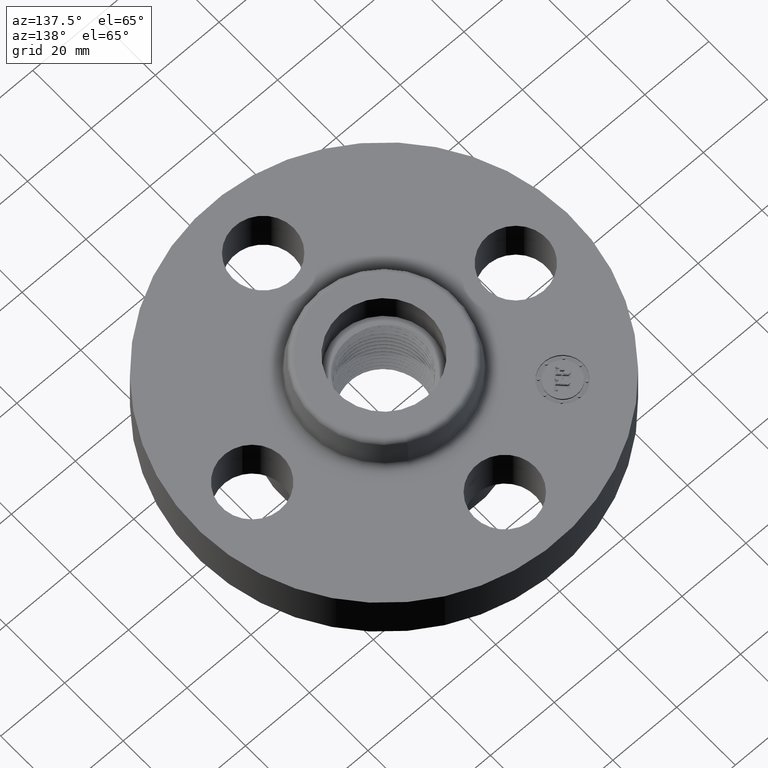
[diagram: clean part render]
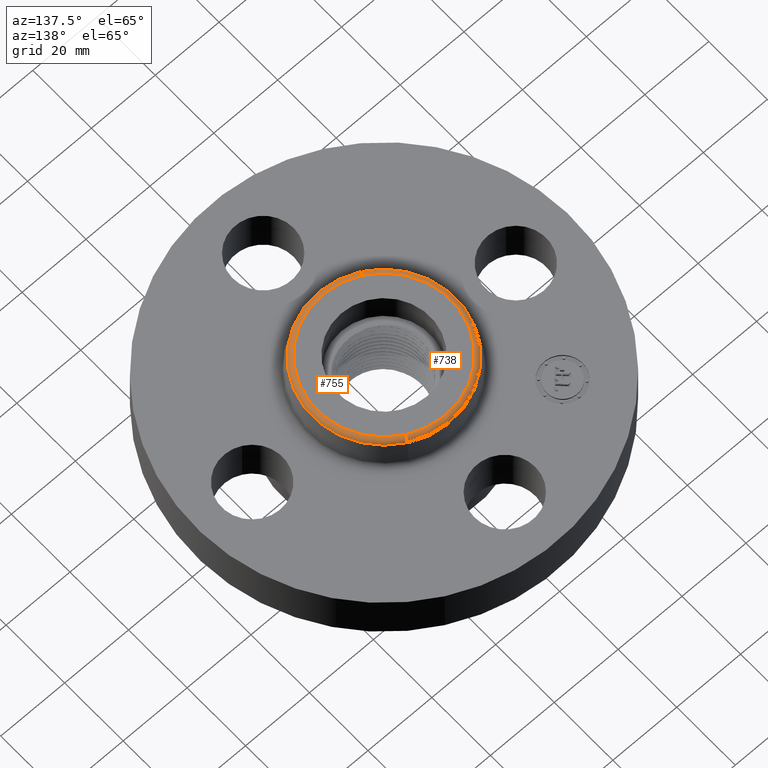
[diagram: same view with one multi-face feature highlighted, each face labeled with its STEP entity id]
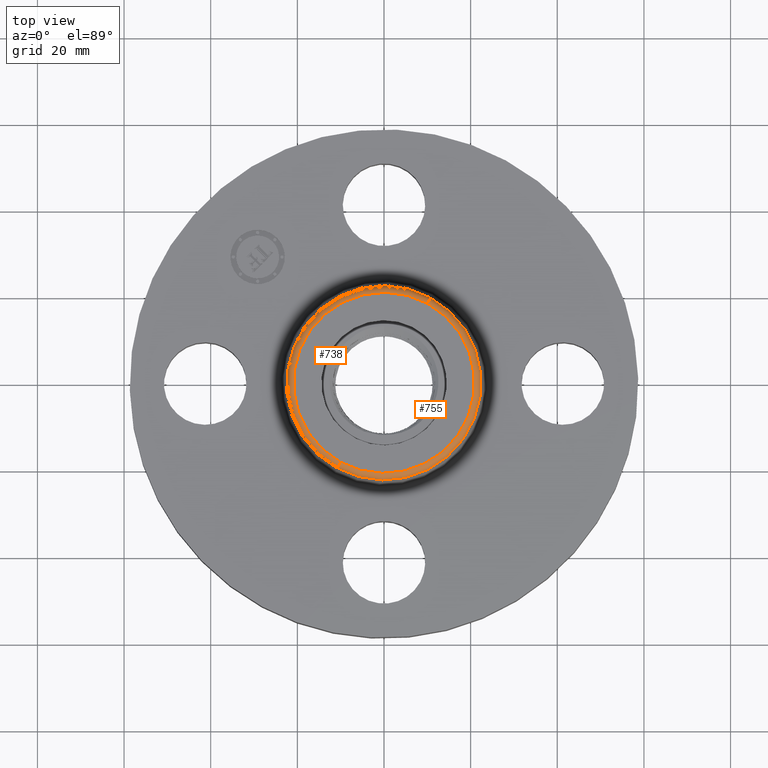
[diagram: same view with one multi-face feature highlighted, each face labeled with its STEP entity id]
A machine part, auxiliary view. The highlighted faces form ONE feature: a constant-radius fillet chain: 2 tangent blend faces with common blend radius 1.524 mm. The faces share edges in the B-rep.
A second angle (top view) of the same feature is appended — it is thin or edge-on in the first view.
Their STEP definitions:
[1] entity #755 (Torus):
#702=AXIS2_PLACEMENT_3D('Torus Axis2P3D',#699,#700,#701) ;
#715=AXIS2_PLACEMENT_3D('Circle Axis2P3D',#713,#714,$) ;
#729=AXIS2_PLACEMENT_3D('Circle Axis2P3D',#727,#728,$) ;
#741=AXIS2_PLACEMENT_3D('Circle Axis2P3D',#739,#740,$) ;
#746=AXIS2_PLACEMENT_3D('Circle Axis2P3D',#744,#745,$) ;
#699=CARTESIAN_POINT('Axis2P3D Location',(0.,0.,0.940000000004)) ;
#708=CARTESIAN_POINT('Vertex',(-0.422727828052,-0.773798098876,0.950418890664)) ;
#710=CARTESIAN_POINT('Vertex',(0.422727828052,0.773798098876,0.950418890664)) ;
#713=CARTESIAN_POINT('Axis2P3D Location',(-0.394399308808,-0.721943092224,0.940000000004)) ;
#717=CARTESIAN_POINT('Vertex',(-0.394399308808,-0.721943092224,1.)) ;
#724=CARTESIAN_POINT('Vertex',(0.394399308808,0.721943092224,1.)) ;
#727=CARTESIAN_POINT('Axis2P3D Location',(0.394399308808,0.721943092224,0.940000000004)) ;
#739=CARTESIAN_POINT('Axis2P3D Location',(0.,0.,0.950418890664)) ;
#744=CARTESIAN_POINT('Axis2P3D Location',(0.,0.,1.)) ;
#700=DIRECTION('Axis2P3D Direction',(0.,0.,-0.0393700787402)) ;
#701=DIRECTION('Axis2P3D XDirection',(0.0188750212049,0.0345504945626,0.)) ;
#714=DIRECTION('Axis2P3D Direction',(0.0345504945626,-0.0188750212049,0.)) ;
#728=DIRECTION('Axis2P3D Direction',(-0.0345504945626,0.0188750212049,0.)) ;
#740=DIRECTION('Axis2P3D Direction',(0.,0.,-0.0393700787402)) ;
#745=DIRECTION('Axis2P3D Direction',(0.,0.,-0.0393700787402)) ;
#750=ORIENTED_EDGE('',*,*,#743,.F.) ;
#751=ORIENTED_EDGE('',*,*,#731,.T.) ;
#752=ORIENTED_EDGE('',*,*,#748,.T.) ;
#753=ORIENTED_EDGE('',*,*,#719,.F.) ;
#755=ADVANCED_FACE('PartBody',(#754),#703,.T.) ;
#716=CIRCLE('generated circle',#715,0.0600000000002) ;
#730=CIRCLE('generated circle',#729,0.0600000000002) ;
#742=CIRCLE('generated circle',#741,0.881738234644) ;
#747=CIRCLE('generated circle',#746,0.822649769463) ;
#703=TOROIDAL_SURFACE('homeo Torus',#702,0.822649769463,0.0600000000002) ;
#719=EDGE_CURVE('',#709,#718,#716,.F.) ;
#731=EDGE_CURVE('',#711,#725,#730,.F.) ;
#743=EDGE_CURVE('',#711,#709,#742,.T.) ;
#748=EDGE_CURVE('',#725,#718,#747,.T.) ;
#749=EDGE_LOOP('',(#750,#751,#752,#753)) ;
#754=FACE_OUTER_BOUND('',#749,.T.) ;
#709=VERTEX_POINT('',#708) ;
#711=VERTEX_POINT('',#710) ;
#718=VERTEX_POINT('',#717) ;
#725=VERTEX_POINT('',#724) ;
[2] entity #738 (Torus):
#702=AXIS2_PLACEMENT_3D('Torus Axis2P3D',#699,#700,#701) ;
#706=AXIS2_PLACEMENT_3D('Circle Axis2P3D',#704,#705,$) ;
#715=AXIS2_PLACEMENT_3D('Circle Axis2P3D',#713,#714,$) ;
#722=AXIS2_PLACEMENT_3D('Circle Axis2P3D',#720,#721,$) ;
#729=AXIS2_PLACEMENT_3D('Circle Axis2P3D',#727,#728,$) ;
#699=CARTESIAN_POINT('Axis2P3D Location',(0.,0.,0.940000000004)) ;
#704=CARTESIAN_POINT('Axis2P3D Location',(0.,0.,0.950418890664)) ;
#708=CARTESIAN_POINT('Vertex',(-0.422727828052,-0.773798098876,0.950418890664)) ;
#710=CARTESIAN_POINT('Vertex',(0.422727828052,0.773798098876,0.950418890664)) ;
#713=CARTESIAN_POINT('Axis2P3D Location',(-0.394399308808,-0.721943092224,0.940000000004)) ;
#717=CARTESIAN_POINT('Vertex',(-0.394399308808,-0.721943092224,1.)) ;
#720=CARTESIAN_POINT('Axis2P3D Location',(0.,0.,1.)) ;
#724=CARTESIAN_POINT('Vertex',(0.394399308808,0.721943092224,1.)) ;
#727=CARTESIAN_POINT('Axis2P3D Location',(0.394399308808,0.721943092224,0.940000000004)) ;
#700=DIRECTION('Axis2P3D Direction',(0.,0.,-0.0393700787402)) ;
#701=DIRECTION('Axis2P3D XDirection',(0.0188750212049,0.0345504945626,0.)) ;
#705=DIRECTION('Axis2P3D Direction',(0.,0.,-0.0393700787402)) ;
#714=DIRECTION('Axis2P3D Direction',(0.0345504945626,-0.0188750212049,0.)) ;
#721=DIRECTION('Axis2P3D Direction',(0.,0.,-0.0393700787402)) ;
#728=DIRECTION('Axis2P3D Direction',(-0.0345504945626,0.0188750212049,0.)) ;
#733=ORIENTED_EDGE('',*,*,#712,.F.) ;
#734=ORIENTED_EDGE('',*,*,#719,.T.) ;
#735=ORIENTED_EDGE('',*,*,#726,.T.) ;
#736=ORIENTED_EDGE('',*,*,#731,.F.) ;
#738=ADVANCED_FACE('PartBody',(#737),#703,.T.) ;
#707=CIRCLE('generated circle',#706,0.881738234644) ;
#716=CIRCLE('generated circle',#715,0.0600000000002) ;
#723=CIRCLE('generated circle',#722,0.822649769463) ;
#730=CIRCLE('generated circle',#729,0.0600000000002) ;
#703=TOROIDAL_SURFACE('homeo Torus',#702,0.822649769463,0.0600000000002) ;
#712=EDGE_CURVE('',#709,#711,#707,.T.) ;
#719=EDGE_CURVE('',#709,#718,#716,.F.) ;
#726=EDGE_CURVE('',#718,#725,#723,.T.) ;
#731=EDGE_CURVE('',#711,#725,#730,.F.) ;
#732=EDGE_LOOP('',(#733,#734,#735,#736)) ;
#737=FACE_OUTER_BOUND('',#732,.T.) ;
#709=VERTEX_POINT('',#708) ;
#711=VERTEX_POINT('',#710) ;
#718=VERTEX_POINT('',#717) ;
#725=VERTEX_POINT('',#724) ;